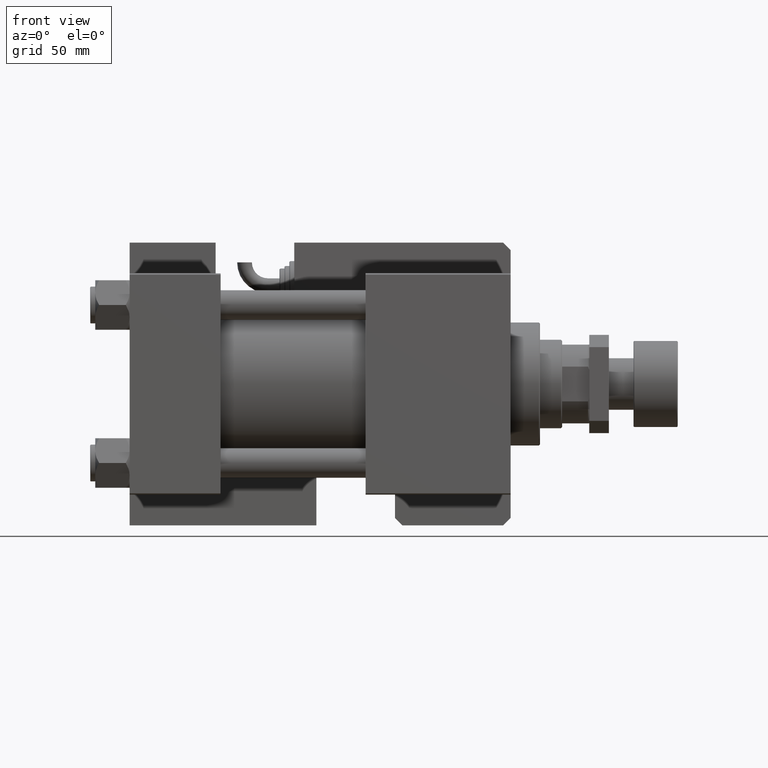
[diagram: clean part render]
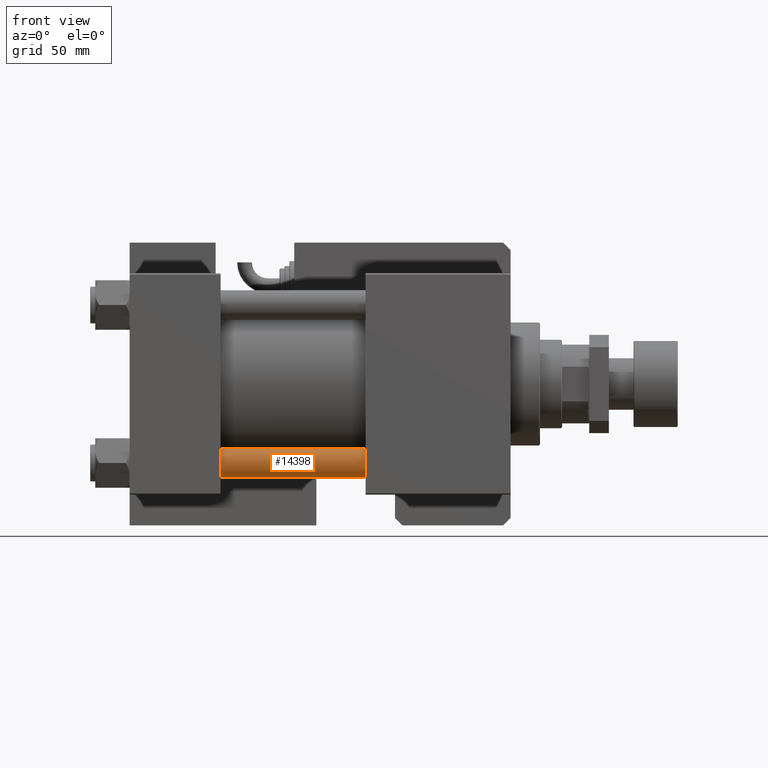
[diagram: same view with one face highlighted and labeled with its STEP entity id]
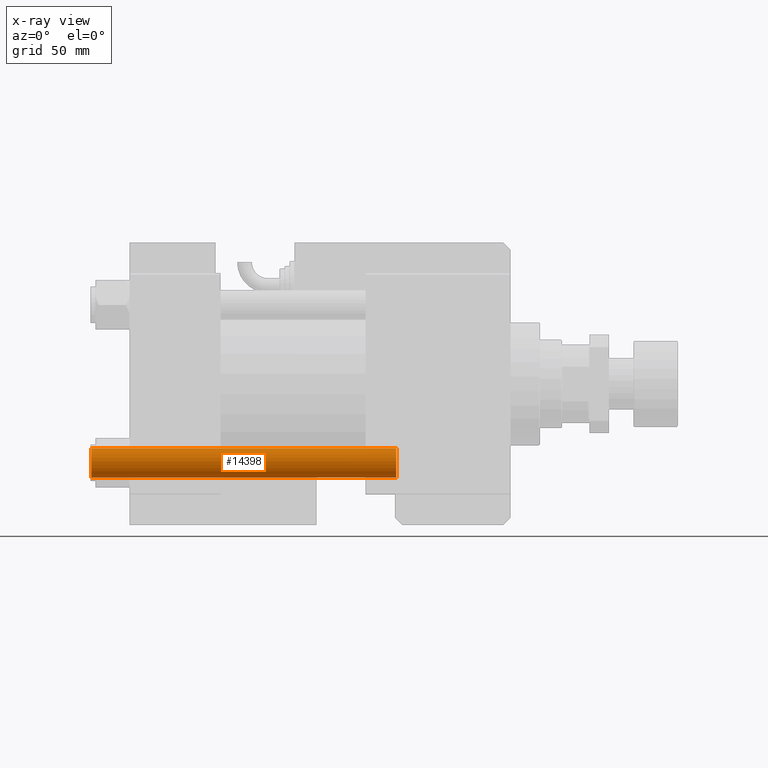
[diagram: x-ray of the same camera — body ghosted, the highlighted face saturated]
A machine part, front view. The second image highlights one B-rep face of the part: STEP entity #14398.
The next image is the same camera in x-ray: the body ghosted, the highlighted face saturated — about 0% of this face is hidden behind the body in this view.
In plain terms, the highlighted cylindrical surface (edge-blend (fillet) strip) has radius 6 mm, axis along (-1, 0, -0).
Its self-contained STEP definition (entity closure, byte-faithful):
#763 = CYLINDRICAL_SURFACE ( 'NONE', #36130, 6.000000000000000888 ) ;
#4719 = LINE ( 'NONE', #12723, #8667 ) ;
#6505 = EDGE_LOOP ( 'NONE', ( #32648, #28289, #21762, #19288 ) ) ;
#8012 = DIRECTION ( 'NONE',  ( 0.000000000000000000, 0.000000000000000000, -1.000000000000000000 ) ) ;
#8206 = VERTEX_POINT ( 'NONE', #46464 ) ;
#8667 = VECTOR ( 'NONE', #48345, 1000.000000000000000 ) ;
#8840 = CARTESIAN_POINT ( 'NONE',  ( 6.000000000000000888, 7.347880794884120722E-16, 0.4999999999999865663 ) ) ;
#9153 = CARTESIAN_POINT ( 'NONE',  ( -6.000000000000000888, 0.000000000000000000, 0.4999999999999865663 ) ) ;
#11269 = EDGE_CURVE ( 'NONE', #45300, #21686, #19608, .T. ) ;
#12582 = CARTESIAN_POINT ( 'NONE',  ( 0.000000000000000000, 0.000000000000000000, 124.5000000000000000 ) ) ;
#12723 = CARTESIAN_POINT ( 'NONE',  ( 6.000000000000000888, 7.347880794884120722E-16, 125.0000000000000000 ) ) ;
#14398 = ADVANCED_FACE ( 'NONE', ( #38983 ), #763, .T. ) ;
#17215 = VERTEX_POINT ( 'NONE', #34580 ) ;
#18860 = CIRCLE ( 'NONE', #50800, 6.000000000000000888 ) ;
#19288 = ORIENTED_EDGE ( 'NONE', *, *, #27131, .F. ) ;
#19608 = CIRCLE ( 'NONE', #51461, 6.000000000000000888 ) ;
#21686 = VERTEX_POINT ( 'NONE', #9153 ) ;
#21762 = ORIENTED_EDGE ( 'NONE', *, *, #11269, .T. ) ;
#21878 = DIRECTION ( 'NONE',  ( -1.000000000000000000, 0.000000000000000000, 0.000000000000000000 ) ) ;
#22902 = CARTESIAN_POINT ( 'NONE',  ( -6.000000000000000888, 0.000000000000000000, 125.0000000000000000 ) ) ;
#24026 = DIRECTION ( 'NONE',  ( -0.000000000000000000, -0.000000000000000000, -1.000000000000000000 ) ) ;
#27131 = EDGE_CURVE ( 'NONE', #8206, #21686, #39736, .T. ) ;
#28289 = ORIENTED_EDGE ( 'NONE', *, *, #54406, .T. ) ;
#28482 = DIRECTION ( 'NONE',  ( -0.000000000000000000, -0.000000000000000000, 1.000000000000000000 ) ) ;
#29133 = DIRECTION ( 'NONE',  ( 1.000000000000000000, 0.000000000000000000, 0.000000000000000000 ) ) ;
#32212 = DIRECTION ( 'NONE',  ( 1.000000000000000000, 0.000000000000000000, 0.000000000000000000 ) ) ;
#32648 = ORIENTED_EDGE ( 'NONE', *, *, #38373, .T. ) ;
#34580 = CARTESIAN_POINT ( 'NONE',  ( 6.000000000000000888, 7.347880794884120722E-16, 124.5000000000000000 ) ) ;
#36130 = AXIS2_PLACEMENT_3D ( 'NONE', #48368, #53223, #21878 ) ;
#38373 = EDGE_CURVE ( 'NONE', #8206, #17215, #18860, .T. ) ;
#38983 = FACE_OUTER_BOUND ( 'NONE', #6505, .T. ) ;
#39736 = LINE ( 'NONE', #22902, #43183 ) ;
#43183 = VECTOR ( 'NONE', #24026, 1000.000000000000000 ) ;
#45300 = VERTEX_POINT ( 'NONE', #8840 ) ;
#46464 = CARTESIAN_POINT ( 'NONE',  ( -6.000000000000000888, 0.000000000000000000, 124.5000000000000000 ) ) ;
#48345 = DIRECTION ( 'NONE',  ( -0.000000000000000000, -0.000000000000000000, -1.000000000000000000 ) ) ;
#48368 = CARTESIAN_POINT ( 'NONE',  ( 0.000000000000000000, 0.000000000000000000, 125.0000000000000000 ) ) ;
#50800 = AXIS2_PLACEMENT_3D ( 'NONE', #12582, #8012, #29133 ) ;
#51461 = AXIS2_PLACEMENT_3D ( 'NONE', #53317, #28482, #32212 ) ;
#53223 = DIRECTION ( 'NONE',  ( -0.000000000000000000, -0.000000000000000000, -1.000000000000000000 ) ) ;
#53317 = CARTESIAN_POINT ( 'NONE',  ( 0.000000000000000000, 0.000000000000000000, 0.4999999999999865663 ) ) ;
#54406 = EDGE_CURVE ( 'NONE', #17215, #45300, #4719, .T. ) ;